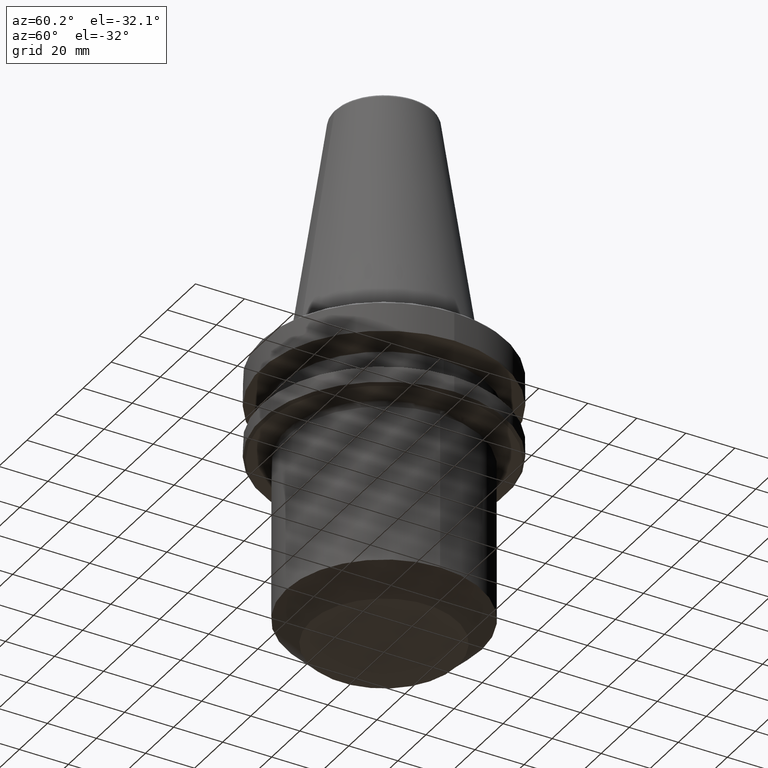
[diagram: clean part render]
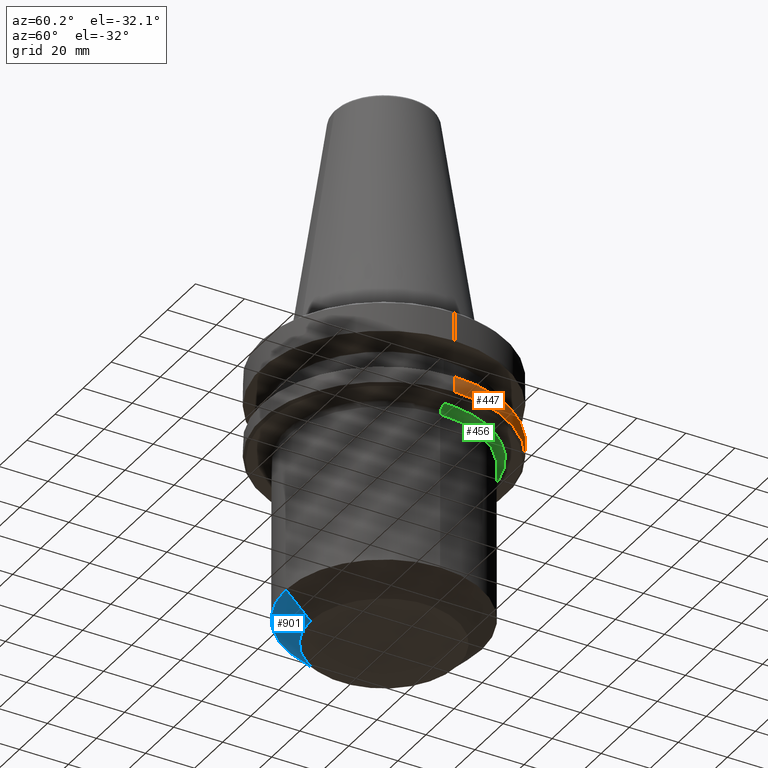
[diagram: same view with three faces highlighted in distinct colors, each labeled with its STEP entity id]
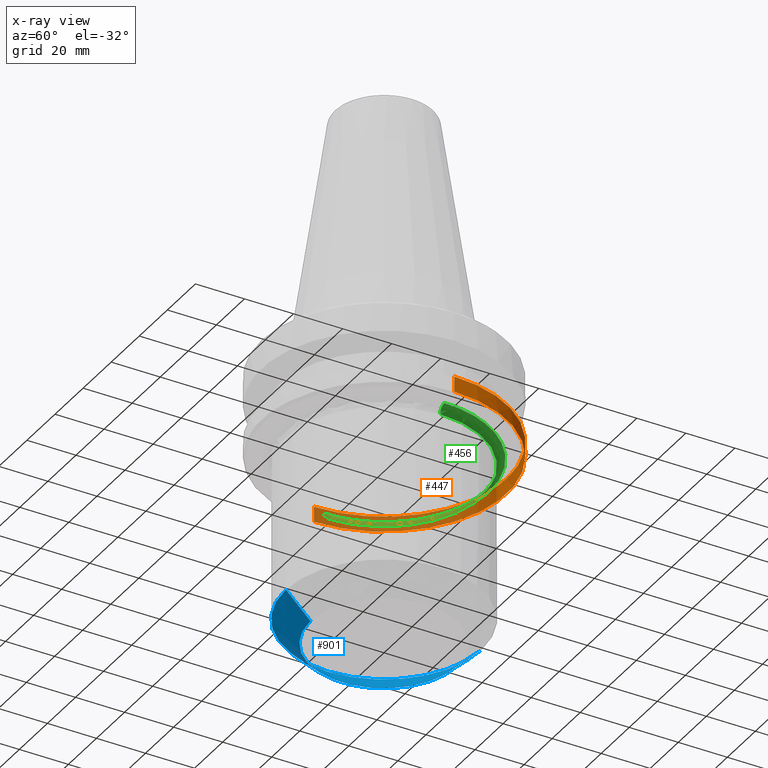
[diagram: x-ray of the same camera — body ghosted, the three highlighted faces saturated]
A machine part, auxiliary view with three faces highlighted in distinct colors.
The next image is the same camera in x-ray (body ghosted, the three faces saturated) — at least one of them is partly hidden behind the body in this view.
Their STEP definitions:

[orange] entity #447 — the highlighted cylindrical surface (partial cylindrical patch) has radius 50 mm, axis along (0, 0, 1).
#9 = CIRCLE ( 'NONE', #1037, 50.00000000000000000 ) ;
#10 = CARTESIAN_POINT ( 'NONE',  ( -50.00000000000000000, 6.123233995736766100E-015, 124.5046326327850600 ) ) ;
#11 = DIRECTION ( 'NONE',  ( 0.0000000000000000000, 0.0000000000000000000, 1.000000000000000000 ) ) ;
#22 = CIRCLE ( 'NONE', #226, 50.00000000000000000 ) ;
#34 = AXIS2_PLACEMENT_3D ( 'NONE', #940, #784, #1107 ) ;
#107 = LINE ( 'NONE', #978, #133 ) ;
#117 = AXIS2_PLACEMENT_3D ( 'NONE', #312, #311, #308 ) ;
#133 = VECTOR ( 'NONE', #977, 1000.000000000000000 ) ;
#159 = VECTOR ( 'NONE', #11, 1000.000000000000000 ) ;
#226 = AXIS2_PLACEMENT_3D ( 'NONE', #1173, #1336, #1334 ) ;
#308 = DIRECTION ( 'NONE',  ( 1.000000000000000000, 0.0000000000000000000, 0.0000000000000000000 ) ) ;
#311 = DIRECTION ( 'NONE',  ( 0.0000000000000000000, 0.0000000000000000000, 1.000000000000000000 ) ) ;
#312 = CARTESIAN_POINT ( 'NONE',  ( 0.0000000000000000000, 0.0000000000000000000, -37.00000000000002100 ) ) ;
#322 = EDGE_CURVE ( 'NONE', #950, #835, #22, .T. ) ;
#329 = VERTEX_POINT ( 'NONE', #1203 ) ;
#374 = CARTESIAN_POINT ( 'NONE',  ( 50.00000000000000000, 0.0000000000000000000, -30.69977999677324500 ) ) ;
#438 = ORIENTED_EDGE ( 'NONE', *, *, #1007, .T. ) ;
#447 = ADVANCED_FACE ( 'NONE', ( #501 ), #941, .T. ) ;
#452 = ORIENTED_EDGE ( 'NONE', *, *, #579, .F. ) ;
#462 = CARTESIAN_POINT ( 'NONE',  ( 50.00000000000000000, 0.0000000000000000000, -37.00000000000002100 ) ) ;
#485 = CARTESIAN_POINT ( 'NONE',  ( 0.0000000000000000000, 50.00000000000000000, -30.69977999677324500 ) ) ;
#501 = FACE_OUTER_BOUND ( 'NONE', #920, .T. ) ;
#579 = EDGE_CURVE ( 'NONE', #836, #950, #107, .T. ) ;
#583 = DIRECTION ( 'NONE',  ( -1.000000000000000000, -8.881784197001252300E-016, 0.0000000000000000000 ) ) ;
#586 = DIRECTION ( 'NONE',  ( -0.0000000000000000000, -0.0000000000000000000, 1.000000000000000000 ) ) ;
#588 = CARTESIAN_POINT ( 'NONE',  ( 0.0000000000000000000, 0.0000000000000000000, -30.69977999677324500 ) ) ;
#676 = EDGE_CURVE ( 'NONE', #835, #329, #9, .T. ) ;
#778 = CARTESIAN_POINT ( 'NONE',  ( -50.00000000000000000, 6.123233995736766100E-015, -37.00000000000002100 ) ) ;
#784 = DIRECTION ( 'NONE',  ( 0.0000000000000000000, 0.0000000000000000000, 1.000000000000000000 ) ) ;
#835 = VERTEX_POINT ( 'NONE', #485 ) ;
#836 = VERTEX_POINT ( 'NONE', #462 ) ;
#920 = EDGE_LOOP ( 'NONE', ( #438, #1241, #1249, #1158, #452 ) ) ;
#940 = CARTESIAN_POINT ( 'NONE',  ( 0.0000000000000000000, 0.0000000000000000000, 124.5046326327850600 ) ) ;
#941 = CYLINDRICAL_SURFACE ( 'NONE', #34, 50.00000000000000000 ) ;
#950 = VERTEX_POINT ( 'NONE', #374 ) ;
#977 = DIRECTION ( 'NONE',  ( 0.0000000000000000000, 0.0000000000000000000, 1.000000000000000000 ) ) ;
#978 = CARTESIAN_POINT ( 'NONE',  ( 50.00000000000000000, 0.0000000000000000000, 124.5046326327850600 ) ) ;
#1007 = EDGE_CURVE ( 'NONE', #836, #1261, #1285, .T. ) ;
#1037 = AXIS2_PLACEMENT_3D ( 'NONE', #588, #586, #583 ) ;
#1072 = EDGE_CURVE ( 'NONE', #1261, #329, #1326, .T. ) ;
#1107 = DIRECTION ( 'NONE',  ( 1.000000000000000000, 0.0000000000000000000, 0.0000000000000000000 ) ) ;
#1158 = ORIENTED_EDGE ( 'NONE', *, *, #322, .F. ) ;
#1173 = CARTESIAN_POINT ( 'NONE',  ( 0.0000000000000000000, 0.0000000000000000000, -30.69977999677324500 ) ) ;
#1203 = CARTESIAN_POINT ( 'NONE',  ( -50.00000000000000000, 6.123233995736766100E-015, -30.69977999677324500 ) ) ;
#1241 = ORIENTED_EDGE ( 'NONE', *, *, #1072, .T. ) ;
#1249 = ORIENTED_EDGE ( 'NONE', *, *, #676, .F. ) ;
#1261 = VERTEX_POINT ( 'NONE', #778 ) ;
#1285 = CIRCLE ( 'NONE', #117, 50.00000000000000000 ) ;
#1326 = LINE ( 'NONE', #10, #159 ) ;
#1334 = DIRECTION ( 'NONE',  ( -1.000000000000000000, 0.0000000000000000000, 0.0000000000000000000 ) ) ;
#1336 = DIRECTION ( 'NONE',  ( -0.0000000000000000000, -0.0000000000000000000, 1.000000000000000000 ) ) ;

[blue] entity #901 — the highlighted conical surface has half-angle 45 deg.
#40 = CARTESIAN_POINT ( 'NONE',  ( 4.898587196589411400E-015, 39.99999999999998600, -104.9999999999999000 ) ) ;
#95 = ORIENTED_EDGE ( 'NONE', *, *, #906, .T. ) ;
#96 = VERTEX_POINT ( 'NONE', #1152 ) ;
#195 = ORIENTED_EDGE ( 'NONE', *, *, #723, .F. ) ;
#220 = VERTEX_POINT ( 'NONE', #1092 ) ;
#246 = ORIENTED_EDGE ( 'NONE', *, *, #992, .T. ) ;
#258 = CARTESIAN_POINT ( 'NONE',  ( 0.0000000000000000000, -29.99999999999999600, -114.9999999999999900 ) ) ;
#324 = DIRECTION ( 'NONE',  ( 0.0000000000000000000, -1.000000000000000000, 0.0000000000000000000 ) ) ;
#326 = DIRECTION ( 'NONE',  ( 0.0000000000000000000, -1.734723475976807300E-016, 1.000000000000000000 ) ) ;
#327 = CARTESIAN_POINT ( 'NONE',  ( 0.0000000000000000000, 1.734723475976823300E-015, -114.9999999999999900 ) ) ;
#363 = CIRCLE ( 'NONE', #552, 40.00000000000000000 ) ;
#387 = ORIENTED_EDGE ( 'NONE', *, *, #845, .F. ) ;
#417 = DIRECTION ( 'NONE',  ( 0.0000000000000000000, -0.7071067811865444600, 0.7071067811865505700 ) ) ;
#418 = CARTESIAN_POINT ( 'NONE',  ( 0.0000000000000000000, -40.00000000000000000, -104.9999999999999100 ) ) ;
#423 = DIRECTION ( 'NONE',  ( 0.0000000000000000000, -1.734723475976807300E-016, 1.000000000000000000 ) ) ;
#427 = CARTESIAN_POINT ( 'NONE',  ( 0.0000000000000000000, 0.0000000000000000000, -104.9999999999999000 ) ) ;
#453 = DIRECTION ( 'NONE',  ( 8.659560562354893400E-017, 0.7071067811865441300, 0.7071067811865507900 ) ) ;
#458 = DIRECTION ( 'NONE',  ( 0.0000000000000000000, -1.000000000000000000, -3.469446951953614200E-016 ) ) ;
#465 = CARTESIAN_POINT ( 'NONE',  ( 4.898587196589413000E-015, 40.00000000000000000, -104.9999999999998900 ) ) ;
#524 = AXIS2_PLACEMENT_3D ( 'NONE', #427, #423, #458 ) ;
#544 = DIRECTION ( 'NONE',  ( 1.000000000000000000, 0.0000000000000000000, 0.0000000000000000000 ) ) ;
#545 = DIRECTION ( 'NONE',  ( 0.0000000000000000000, 0.0000000000000000000, 1.000000000000000000 ) ) ;
#546 = CARTESIAN_POINT ( 'NONE',  ( 0.0000000000000000000, 0.0000000000000000000, -104.9999999999999000 ) ) ;
#552 = AXIS2_PLACEMENT_3D ( 'NONE', #546, #545, #544 ) ;
#593 = EDGE_CURVE ( 'NONE', #96, #220, #1273, .T. ) ;
#605 = VERTEX_POINT ( 'NONE', #923 ) ;
#608 = CONICAL_SURFACE ( 'NONE', #524, 40.00000000000000000, 0.7853981633974438400 ) ;
#723 = EDGE_CURVE ( 'NONE', #1020, #96, #363, .T. ) ;
#797 = EDGE_LOOP ( 'NONE', ( #387, #246, #95, #1111, #195 ) ) ;
#823 = DIRECTION ( 'NONE',  ( 1.000000000000000000, 0.0000000000000000000, 0.0000000000000000000 ) ) ;
#826 = DIRECTION ( 'NONE',  ( 0.0000000000000000000, 0.0000000000000000000, 1.000000000000000000 ) ) ;
#845 = EDGE_CURVE ( 'NONE', #605, #1020, #1212, .T. ) ;
#901 = ADVANCED_FACE ( 'NONE', ( #1231 ), #608, .T. ) ;
#906 = EDGE_CURVE ( 'NONE', #1339, #220, #1042, .T. ) ;
#923 = CARTESIAN_POINT ( 'NONE',  ( 4.286263797015734900E-015, 30.00000000000000400, -114.9999999999999900 ) ) ;
#992 = EDGE_CURVE ( 'NONE', #605, #1339, #1344, .T. ) ;
#1020 = VERTEX_POINT ( 'NONE', #40 ) ;
#1023 = CARTESIAN_POINT ( 'NONE',  ( 0.0000000000000000000, 0.0000000000000000000, -104.9999999999999000 ) ) ;
#1042 = LINE ( 'NONE', #418, #1166 ) ;
#1059 = AXIS2_PLACEMENT_3D ( 'NONE', #327, #326, #324 ) ;
#1092 = CARTESIAN_POINT ( 'NONE',  ( 0.0000000000000000000, -40.00000000000001400, -104.9999999999999000 ) ) ;
#1097 = VECTOR ( 'NONE', #453, 1000.000000000000100 ) ;
#1111 = ORIENTED_EDGE ( 'NONE', *, *, #593, .F. ) ;
#1152 = CARTESIAN_POINT ( 'NONE',  ( -40.00000000000000000, 4.898587196589413000E-015, -104.9999999999999000 ) ) ;
#1166 = VECTOR ( 'NONE', #417, 1000.000000000000000 ) ;
#1212 = LINE ( 'NONE', #465, #1097 ) ;
#1231 = FACE_OUTER_BOUND ( 'NONE', #797, .T. ) ;
#1273 = CIRCLE ( 'NONE', #1318, 40.00000000000000000 ) ;
#1318 = AXIS2_PLACEMENT_3D ( 'NONE', #1023, #826, #823 ) ;
#1339 = VERTEX_POINT ( 'NONE', #258 ) ;
#1344 = CIRCLE ( 'NONE', #1059, 30.00000000000000000 ) ;

[green] entity #456 — the highlighted face is a freeform B-spline surface patch.
#79 = AXIS2_PLACEMENT_3D ( 'NONE', #1167, #1165, #1163 ) ;
#94 = CIRCLE ( 'NONE', #250, 3.000000000000002700 ) ;
#99 = ORIENTED_EDGE ( 'NONE', *, *, #297, .F. ) ;
#250 = AXIS2_PLACEMENT_3D ( 'NONE', #1238, #1236, #1235 ) ;
#279 = AXIS2_PLACEMENT_3D ( 'NONE', #1125, #470, #1214 ) ;
#286 = ORIENTED_EDGE ( 'NONE', *, *, #569, .T. ) ;
#297 = EDGE_CURVE ( 'NONE', #511, #359, #94, .T. ) ;
#359 = VERTEX_POINT ( 'NONE', #1274 ) ;
#396 = EDGE_CURVE ( 'NONE', #798, #511, #1349, .T. ) ;
#401 = CIRCLE ( 'NONE', #279, 3.000000000000002700 ) ;
#456 = ADVANCED_FACE ( 'NONE', ( #565 ), #648, .F. ) ;
#460 = ORIENTED_EDGE ( 'NONE', *, *, #396, .F. ) ;
#470 = DIRECTION ( 'NONE',  ( -1.224646799147353200E-016, -1.000000000000000000, 0.0000000000000000000 ) ) ;
#498 = CARTESIAN_POINT ( 'NONE',  ( -40.00000000000000000, 4.898587196589413000E-015, -41.00000000000000700 ) ) ;
#511 = VERTEX_POINT ( 'NONE', #1075 ) ;
#535 =( BOUNDED_CURVE ( )  B_SPLINE_CURVE ( 3, ( #814, #997, #812, #811 ),
 .UNSPECIFIED., .F., .F. ) 
 B_SPLINE_CURVE_WITH_KNOTS ( ( 4, 4 ),
 ( 0.0000000000000000000, 1.000000000000000000 ),
 .UNSPECIFIED. ) 
 CURVE ( )  GEOMETRIC_REPRESENTATION_ITEM ( )  RATIONAL_B_SPLINE_CURVE ( ( 1.000000000000000000, 0.3333333333333333700, 0.3333333333333333700, 1.000000000000000000 ) ) 
 REPRESENTATION_ITEM ( '' )  );
#563 = CARTESIAN_POINT ( 'NONE',  ( -43.00000000000000000, 5.935146303363063200E-015, -38.00000000000000700 ) ) ;
#565 = FACE_OUTER_BOUND ( 'NONE', #1359, .T. ) ;
#569 = EDGE_CURVE ( 'NONE', #718, #359, #535, .T. ) ;
#648 =( BOUNDED_SURFACE ( )  B_SPLINE_SURFACE ( 3, 3, ( 
 ( #885, #903, #879, #877 ),
 ( #1029, #1027, #1026, #1035 ),
 ( #1033, #1031, #1050, #1041 ),
 ( #1039, #875, #874, #872 ) ),
 .UNSPECIFIED., .F., .F., .F. ) 
 B_SPLINE_SURFACE_WITH_KNOTS ( ( 4, 4 ),
 ( 4, 4 ),
 ( 0.0000000000000000000, 1.000000000000000000 ),
 ( 0.0000000000000000000, 1.000000000000000000 ),
 .UNSPECIFIED. ) 
 GEOMETRIC_REPRESENTATION_ITEM ( )  RATIONAL_B_SPLINE_SURFACE ( (
 ( 1.000000000000000000, 0.3333333333333334300, 0.3333333333333334300, 1.000000000000000000),
 ( 0.8047378541243649400, 0.2682459513747884100, 0.2682459513747884100, 0.8047378541243649400),
 ( 0.8047378541243649400, 0.2682459513747884100, 0.2682459513747884100, 0.8047378541243649400),
 ( 1.000000000000000000, 0.3333333333333334300, 0.3333333333333334300, 1.000000000000000000) ) ) 
 REPRESENTATION_ITEM ( '' )  SURFACE ( )  );
#718 = VERTEX_POINT ( 'NONE', #563 ) ;
#798 = VERTEX_POINT ( 'NONE', #498 ) ;
#811 = CARTESIAN_POINT ( 'NONE',  ( 43.00000000000000000, 0.0000000000000000000, -38.00000000000000700 ) ) ;
#812 = CARTESIAN_POINT ( 'NONE',  ( 43.00000000000000000, 86.00000000000000000, -38.00000000000000700 ) ) ;
#814 = CARTESIAN_POINT ( 'NONE',  ( -43.00000000000000000, 5.935146303363063200E-015, -38.00000000000000700 ) ) ;
#872 = CARTESIAN_POINT ( 'NONE',  ( -43.00000000000000000, 5.265981236333619300E-015, -38.00000000000000700 ) ) ;
#874 = CARTESIAN_POINT ( 'NONE',  ( -42.99999999999999300, 86.00000000000000000, -38.00000000000000700 ) ) ;
#875 = CARTESIAN_POINT ( 'NONE',  ( 43.00000000000000700, 86.00000000000000000, -38.00000000000000700 ) ) ;
#877 = CARTESIAN_POINT ( 'NONE',  ( -40.00000000000000000, 4.898587196589413000E-015, -41.00000000000000700 ) ) ;
#879 = CARTESIAN_POINT ( 'NONE',  ( -39.99999999999999300, 79.99999999999998600, -41.00000000000001400 ) ) ;
#885 = CARTESIAN_POINT ( 'NONE',  ( 40.00000000000000000, 0.0000000000000000000, -41.00000000000000700 ) ) ;
#903 = CARTESIAN_POINT ( 'NONE',  ( 40.00000000000000000, 79.99999999999998600, -41.00000000000001400 ) ) ;
#997 = CARTESIAN_POINT ( 'NONE',  ( -42.99999999999999300, 86.00000000000000000, -38.00000000000000700 ) ) ;
#1026 = CARTESIAN_POINT ( 'NONE',  ( -39.99999999999998600, 79.99999999999997200, -39.24264068711929100 ) ) ;
#1027 = CARTESIAN_POINT ( 'NONE',  ( 39.99999999999999300, 79.99999999999997200, -39.24264068711929100 ) ) ;
#1029 = CARTESIAN_POINT ( 'NONE',  ( 40.00000000000000000, 0.0000000000000000000, -39.24264068711929800 ) ) ;
#1031 = CARTESIAN_POINT ( 'NONE',  ( 41.24264068711929100, 82.48528137423856800, -38.00000000000000700 ) ) ;
#1033 = CARTESIAN_POINT ( 'NONE',  ( 41.24264068711928400, 0.0000000000000000000, -38.00000000000000700 ) ) ;
#1035 = CARTESIAN_POINT ( 'NONE',  ( -40.00000000000000000, 4.898587196589413000E-015, -39.24264068711929800 ) ) ;
#1039 = CARTESIAN_POINT ( 'NONE',  ( 43.00000000000000000, 0.0000000000000000000, -38.00000000000000700 ) ) ;
#1041 = CARTESIAN_POINT ( 'NONE',  ( -41.24264068711928400, 5.050766790586503500E-015, -38.00000000000000700 ) ) ;
#1050 = CARTESIAN_POINT ( 'NONE',  ( -41.24264068711928400, 82.48528137423856800, -38.00000000000000700 ) ) ;
#1075 = CARTESIAN_POINT ( 'NONE',  ( 40.00000000000000000, 0.0000000000000000000, -41.00000000000000700 ) ) ;
#1125 = CARTESIAN_POINT ( 'NONE',  ( -43.00000000000000000, 5.265981236333619300E-015, -41.00000000000000700 ) ) ;
#1139 = ORIENTED_EDGE ( 'NONE', *, *, #1335, .T. ) ;
#1163 = DIRECTION ( 'NONE',  ( 1.000000000000000000, 0.0000000000000000000, 0.0000000000000000000 ) ) ;
#1165 = DIRECTION ( 'NONE',  ( -0.0000000000000000000, -0.0000000000000000000, -1.000000000000000000 ) ) ;
#1167 = CARTESIAN_POINT ( 'NONE',  ( 0.0000000000000000000, 0.0000000000000000000, -41.00000000000000700 ) ) ;
#1214 = DIRECTION ( 'NONE',  ( -1.000000000000000000, 1.224646799147352000E-016, 0.0000000000000000000 ) ) ;
#1235 = DIRECTION ( 'NONE',  ( 1.000000000000000000, 0.0000000000000000000, 0.0000000000000000000 ) ) ;
#1236 = DIRECTION ( 'NONE',  ( 0.0000000000000000000, 1.000000000000000000, 0.0000000000000000000 ) ) ;
#1238 = CARTESIAN_POINT ( 'NONE',  ( 43.00000000000000000, 0.0000000000000000000, -41.00000000000000700 ) ) ;
#1274 = CARTESIAN_POINT ( 'NONE',  ( 43.00000000000000000, 0.0000000000000000000, -38.00000000000000700 ) ) ;
#1335 = EDGE_CURVE ( 'NONE', #798, #718, #401, .T. ) ;
#1349 = CIRCLE ( 'NONE', #79, 40.00000000000000000 ) ;
#1359 = EDGE_LOOP ( 'NONE', ( #460, #1139, #286, #99 ) ) ;